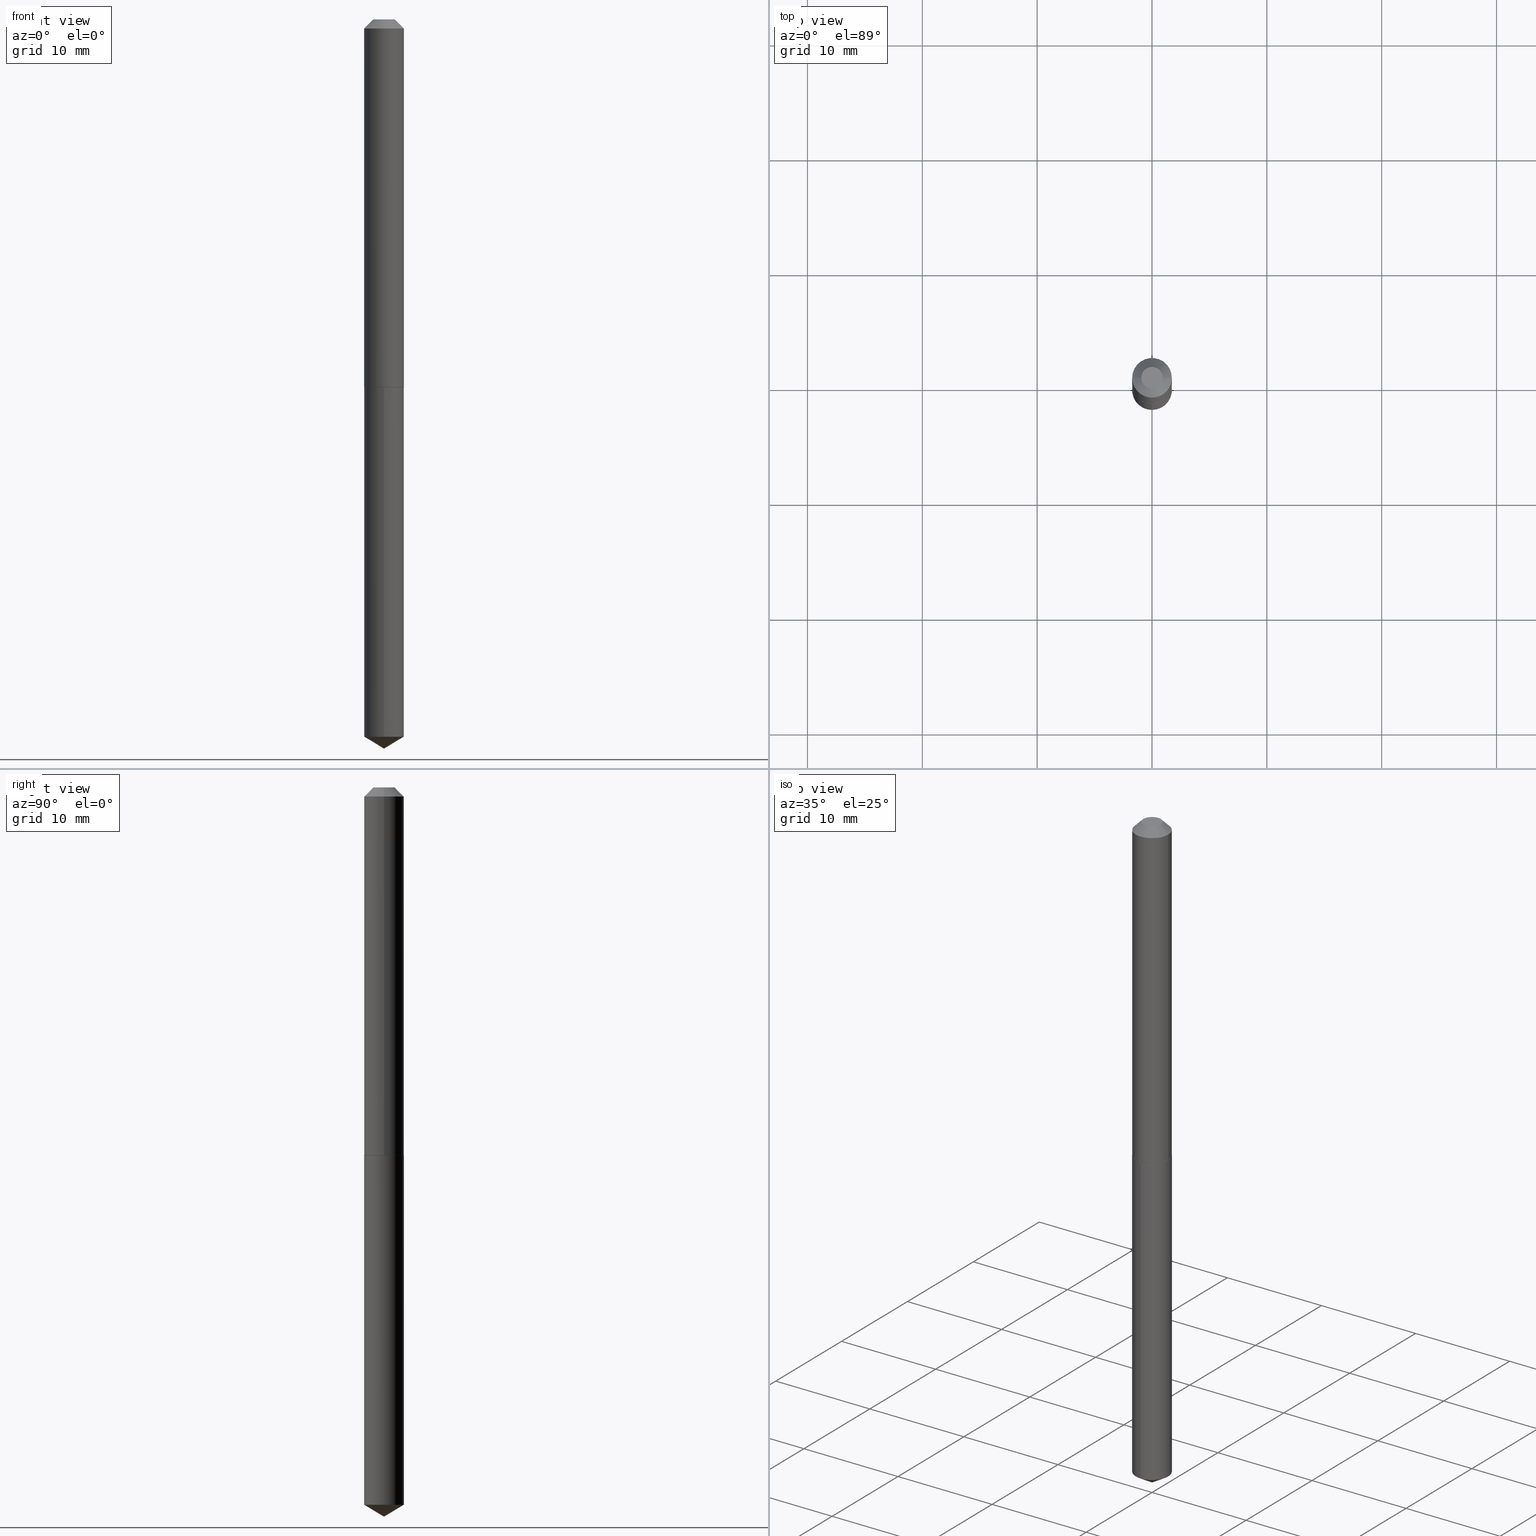
[diagram: canonical four-view strip — front | top / right | iso, engineering-drawing reading convention]
A machine part, canonical four-view strip (front | top / right | iso — engineering-drawing reading convention). The complete STEP part file that produces these views, byte-faithful:
ISO-10303-21;
HEADER;
FILE_DESCRIPTION (( 'STEP AP203' ),
    '1' );
FILE_NAME ('51029.STEP',
    '2024-04-22T18:15:19',
    ( '' ),
    ( '' ),
    'SwSTEP 2.0',
    'SolidWorks 2023',
    '' );
FILE_SCHEMA (( 'CONFIG_CONTROL_DESIGN' ));
ENDSEC;

DATA;
#1 = COORDINATED_UNIVERSAL_TIME_OFFSET ( 5, 0, .BEHIND. ) ;
#2 = ORIENTED_EDGE ( 'NONE', *, *, #338, .F. ) ;
#3 = DIRECTION ( 'NONE',  ( -2.445462976299597791E-29, 3.491489687571053805E-15, 1.000000000000000000 ) ) ;
#4 = APPROVAL ( #241, 'UNSPECIFIED' ) ;
#5 = LINE ( 'NONE', #240, #194 ) ;
#6 = EDGE_LOOP ( 'NONE', ( #37, #182, #9, #10 ) ) ;
#7 = CIRCLE ( 'NONE', #201, 0.03675000000000000488 ) ;
#8 = ORIENTED_EDGE ( 'NONE', *, *, #43, .F. ) ;
#9 = ORIENTED_EDGE ( 'NONE', *, *, #104, .F. ) ;
#10 = ORIENTED_EDGE ( 'NONE', *, *, #121, .F. ) ;
#11 = ORIENTED_EDGE ( 'NONE', *, *, #155, .T. ) ;
#12 = VERTEX_POINT ( 'NONE', #210 ) ;
#13 = CARTESIAN_POINT ( 'NONE',  ( -4.748414620826353629E-16, -0.06800000000000441802, -1.261000000000000121 ) ) ;
#14 = SECURITY_CLASSIFICATION ( '', '', #25 ) ;
#15 = DIRECTION ( 'NONE',  ( -2.445468806185136597E-29, 3.491481338843145583E-15, 1.000000000000000000 ) ) ;
#16 = PERSON ( 'UNSPECIFIED', 'UNSPECIFIED', 'UNSPECIFIED', ('UNSPECIFIED'), ('UNSPECIFIED'), ('UNSPECIFIED') ) ;
#17 = MANIFOLD_SOLID_BREP ( 'Body-Move/Copy2[1]', #244 ) ;
#18 = DIRECTION ( 'NONE',  ( -2.445468806185136597E-29, 3.491481338843145583E-15, 1.000000000000000000 ) ) ;
#19 = DIRECTION ( 'NONE',  ( 1.000000000000000000, -6.982962677686267499E-15, 0.000000000000000000 ) ) ;
#20 = DIRECTION ( 'NONE',  ( -2.445468806185136597E-29, 3.491481338843145583E-15, 1.000000000000000000 ) ) ;
#21 = EDGE_CURVE ( 'NONE', #280, #304, #372, .T. ) ;
#22 = COORDINATED_UNIVERSAL_TIME_OFFSET ( 5, 0, .BEHIND. ) ;
#23 = AXIS2_PLACEMENT_3D ( 'NONE', #286, #323, #226 ) ;
#24 = DIRECTION ( 'NONE',  ( -2.445468806185136597E-29, 3.491481338843145583E-15, 1.000000000000000000 ) ) ;
#25 = SECURITY_CLASSIFICATION_LEVEL ( 'unclassified' ) ;
#26 = DIRECTION ( 'NONE',  ( 1.000000000000000000, -6.982962677686271444E-15, 0.000000000000000000 ) ) ;
#27 = DIRECTION ( 'NONE',  ( -2.445462976299597791E-29, 3.491489687571053805E-15, 1.000000000000000000 ) ) ;
#28 = ADVANCED_FACE ( 'NONE', ( #207 ), #296, .F. ) ;
#29 = CALENDAR_DATE ( 2024, 22, 4 ) ;
#30 = AXIS2_PLACEMENT_3D ( 'NONE', #54, #266, #205 ) ;
#31 = VECTOR ( 'NONE', #143, 39.37007874015748143 ) ;
#32 = CC_DESIGN_APPROVAL ( #4, ( #327 ) ) ;
#33 = CARTESIAN_POINT ( 'NONE',  ( 6.738379978295977236E-48, -9.620620753268178527E-34, -2.755455298081541504E-19 ) ) ;
#34 = ORIENTED_EDGE ( 'NONE', *, *, #65, .F. ) ;
#35 = DIRECTION ( 'NONE',  ( -0.7071067811865451302, 2.468850131082231817E-15, -0.7071067811865499042 ) ) ;
#36 = ORIENTED_EDGE ( 'NONE', *, *, #43, .T. ) ;
#37 = ORIENTED_EDGE ( 'NONE', *, *, #384, .T. ) ;
#38 = ORIENTED_EDGE ( 'NONE', *, *, #341, .F. ) ;
#39 = CONICAL_SURFACE ( 'NONE', #320, 0.06800000000000000488, 0.7853981633974449483 ) ;
#40 = LOCAL_TIME ( 14, 15, 19.00000000000000000, #198 ) ;
#41 = PRODUCT_DEFINITION_SHAPE ( 'NONE', 'NONE',  #228 ) ;
#42 = EDGE_CURVE ( 'NONE', #304, #280, #62, .T. ) ;
#43 = EDGE_CURVE ( 'NONE', #287, #339, #136, .T. ) ;
#44 = AXIS2_PLACEMENT_3D ( 'NONE', #360, #3, #326 ) ;
#45 = CARTESIAN_POINT ( 'NONE',  ( 6.013746789187770522E-29, -8.586056582641587078E-15, -2.459141477906126028 ) ) ;
#46 = FACE_OUTER_BOUND ( 'NONE', #6, .T. ) ;
#47 = DIRECTION ( 'NONE',  ( -6.982962677686265922E-15, -1.000000000000000000, 3.468864327941581987E-15 ) ) ;
#48 = CC_DESIGN_APPROVAL ( #68, ( #14 ) ) ;
#49 = CARTESIAN_POINT ( 'NONE',  ( -4.748414620826059778E-16, -0.06800000000000858136, -2.459141477906126028 ) ) ;
#50 = DIRECTION ( 'NONE',  ( 0.7071067811865451302, -7.319954787623248157E-15, -0.7071067811865499042 ) ) ;
#51 = APPROVAL_DATE_TIME ( #324, #4 ) ;
#52 =( GEOMETRIC_REPRESENTATION_CONTEXT ( 3 ) GLOBAL_UNCERTAINTY_ASSIGNED_CONTEXT ( ( #316 ) ) GLOBAL_UNIT_ASSIGNED_CONTEXT ( ( #90, #300, #145 ) ) REPRESENTATION_CONTEXT ( 'NONE', 'WORKASPACE' ) );
#53 = CC_DESIGN_PERSON_AND_ORGANIZATION_ASSIGNMENT ( #55, #173, ( #214 ) ) ;
#54 = CARTESIAN_POINT ( 'NONE',  ( 3.082513430196365653E-29, -4.401012227611786413E-15, -1.260500000000000398 ) ) ;
#55 = PERSON_AND_ORGANIZATION ( #16, #211 ) ;
#56 = DIRECTION ( 'NONE',  ( -2.445462976299598072E-29, 3.491489687571053805E-15, 1.000000000000000000 ) ) ;
#57 = LINE ( 'NONE', #268, #248 ) ;
#58 = APPLICATION_PROTOCOL_DEFINITION ( 'international standard', 'config_control_design', 1994, #369 ) ;
#59 = LINE ( 'NONE', #89, #156 ) ;
#60 = PERSON_AND_ORGANIZATION ( #16, #211 ) ;
#61 = VERTEX_POINT ( 'NONE', #385 ) ;
#62 = CIRCLE ( 'NONE', #269, 0.06750000000000024036 ) ;
#63 = DIRECTION ( 'NONE',  ( -6.982962677686265922E-15, -1.000000000000000000, 4.017423520094504617E-15 ) ) ;
#64 = ORIENTED_EDGE ( 'NONE', *, *, #291, .F. ) ;
#65 = EDGE_CURVE ( 'NONE', #154, #213, #344, .T. ) ;
#66 = ORIENTED_EDGE ( 'NONE', *, *, #197, .T. ) ;
#67 = EDGE_LOOP ( 'NONE', ( #311, #66, #125, #309 ) ) ;
#68 = APPROVAL ( #80, 'UNSPECIFIED' ) ;
#69 = EDGE_CURVE ( 'NONE', #213, #154, #71, .T. ) ;
#70 = CC_DESIGN_DATE_AND_TIME_ASSIGNMENT ( #325, #170, ( #228 ) ) ;
#71 = CIRCLE ( 'NONE', #105, 0.06800000000000000488 ) ;
#72 = LENGTH_MEASURE_WITH_UNIT ( LENGTH_MEASURE( 0.02539999999999999897 ), #251 );
#73 = EDGE_CURVE ( 'NONE', #310, #122, #7, .T. ) ;
#74 = CARTESIAN_POINT ( 'NONE',  ( -0.06800000000000000488, -1.771891449408448018E-15, -0.03125000000000020817 ) ) ;
#75 = DIRECTION ( 'NONE',  ( -6.982962677686265922E-15, -1.000000000000000000, 4.017423520094504617E-15 ) ) ;
#76 = DIRECTION ( 'NONE',  ( 1.000000000000000000, -6.982962677686266711E-15, 4.876173967176390576E-29 ) ) ;
#77 = CIRCLE ( 'NONE', #253, 0.06800000000000000488 ) ;
#78 = CARTESIAN_POINT ( 'NONE',  ( 7.642090019328602662E-31, -1.091087918388490267E-16, -0.03125000000000020817 ) ) ;
#79 = DIRECTION ( 'NONE',  ( 1.000000000000000000, -6.982962677686258822E-15, 0.000000000000000000 ) ) ;
#80 = APPROVAL_STATUS ( 'not_yet_approved' ) ;
#81 = DIRECTION ( 'NONE',  ( -2.445462976299597791E-29, 3.491489687571053805E-15, 1.000000000000000000 ) ) ;
#82 = LINE ( 'NONE', #87, #31 ) ;
#83 = DIRECTION ( 'NONE',  ( -2.445468806185136597E-29, 3.491481338843145583E-15, 1.000000000000000000 ) ) ;
#84 = DATE_AND_TIME ( #232, #40 ) ;
#85 = ADVANCED_FACE ( 'NONE', ( #275 ), #39, .T. ) ;
#86 = PLANE ( 'NONE',  #119 ) ;
#87 = CARTESIAN_POINT ( 'NONE',  ( 0.06800000000000008815, -4.748414620826667201E-16, 3.315800207541240207E-30 ) ) ;
#88 = DATE_AND_TIME ( #116, #299 ) ;
#89 = CARTESIAN_POINT ( 'NONE',  ( -0.06800000000000000488, 3.657326702438171757E-16, -0.03125000000000020817 ) ) ;
#90 =( CONVERSION_BASED_UNIT ( 'INCH', #72 ) LENGTH_UNIT ( ) NAMED_UNIT ( #186 ) );
#91 = DIRECTION ( 'NONE',  ( 2.438088387897960049E-29, -3.491481338843145188E-15, -1.000000000000000000 ) ) ;
#92 = DIRECTION ( 'NONE',  ( -2.445468806185136597E-29, 3.491481338843145583E-15, 1.000000000000000000 ) ) ;
#93 = EDGE_CURVE ( 'NONE', #287, #373, #5, .T. ) ;
#94 = CARTESIAN_POINT ( 'NONE',  ( 3.083736164599457894E-29, -4.402757968281207128E-15, -1.261000000000000343 ) ) ;
#95 = LOCAL_TIME ( 14, 15, 19.00000000000000000, #295 ) ;
#96 = ORIENTED_EDGE ( 'NONE', *, *, #69, .F. ) ;
#97 = CC_DESIGN_PERSON_AND_ORGANIZATION_ASSIGNMENT ( #292, #144, ( #327 ) ) ;
#98 = ORIENTED_EDGE ( 'NONE', *, *, #237, .F. ) ;
#99 = ORIENTED_EDGE ( 'NONE', *, *, #69, .T. ) ;
#100 = CIRCLE ( 'NONE', #367, 0.06800000000000015754 ) ;
#101 = ORIENTED_EDGE ( 'NONE', *, *, #338, .T. ) ;
#102 = FACE_OUTER_BOUND ( 'NONE', #215, .T. ) ;
#103 = DIRECTION ( 'NONE',  ( -2.445462976299597791E-29, 3.491489687571053805E-15, 1.000000000000000000 ) ) ;
#104 = EDGE_CURVE ( 'NONE', #61, #283, #77, .T. ) ;
#105 = AXIS2_PLACEMENT_3D ( 'NONE', #297, #27, #63 ) ;
#106 = AXIS2_PLACEMENT_3D ( 'NONE', #124, #135, #75 ) ;
#107 = CYLINDRICAL_SURFACE ( 'NONE', #235, 0.06800000000000000488 ) ;
#108 = CC_DESIGN_DATE_AND_TIME_ASSIGNMENT ( #388, #138, ( #14 ) ) ;
#109 = APPROVAL_ROLE ( '' ) ;
#110 = DIRECTION ( 'NONE',  ( -1.000000000000000000, 6.982962677686267499E-15, 0.000000000000000000 ) ) ;
#111 = PERSON_AND_ORGANIZATION ( #16, #211 ) ;
#112 = APPROVAL_DATE_TIME ( #88, #313 ) ;
#113 = FACE_OUTER_BOUND ( 'NONE', #209, .T. ) ;
#114 = CARTESIAN_POINT ( 'NONE',  ( 0.000000000000000000, 0.000000000000000000, 0.000000000000000000 ) ) ;
#115 = DIRECTION ( 'NONE',  ( 2.445468806185136597E-29, -3.491481338843145583E-15, -1.000000000000000000 ) ) ;
#116 = CALENDAR_DATE ( 2024, 22, 4 ) ;
#117 = ORIENTED_EDGE ( 'NONE', *, *, #224, .F. ) ;
#118 = CARTESIAN_POINT ( 'NONE',  ( 3.083736164599457894E-29, -4.402757968281207128E-15, -1.261000000000000343 ) ) ;
#119 = AXIS2_PLACEMENT_3D ( 'NONE', #94, #212, #362 ) ;
#120 = VECTOR ( 'NONE', #289, 39.37007874015748143 ) ;
#121 = EDGE_CURVE ( 'NONE', #12, #61, #82, .T. ) ;
#122 = VERTEX_POINT ( 'NONE', #200 ) ;
#123 = ORIENTED_EDGE ( 'NONE', *, *, #307, .F. ) ;
#124 = CARTESIAN_POINT ( 'NONE',  ( 6.013746789187770522E-29, -8.586056582641587078E-15, -2.459141477906126028 ) ) ;
#125 = ORIENTED_EDGE ( 'NONE', *, *, #384, .F. ) ;
#126 = AXIS2_PLACEMENT_3D ( 'NONE', #356, #81, #233 ) ;
#127 = CONICAL_SURFACE ( 'NONE', #387, 0.06800000000000000488, 0.7853981633974449483 ) ;
#128 = EDGE_LOOP ( 'NONE', ( #337, #184, #242, #101 ) ) ;
#129 = CARTESIAN_POINT ( 'NONE',  ( 3.082513430196365653E-29, -4.401012227611786413E-15, -1.260500000000000398 ) ) ;
#130 = CARTESIAN_POINT ( 'NONE',  ( -0.06800000000000015754, -3.917843167294917857E-15, -1.260500000000000398 ) ) ;
#131 = LINE ( 'NONE', #164, #246 ) ;
#132 = VECTOR ( 'NONE', #50, 39.37007874015748143 ) ;
#133 = PLANE ( 'NONE',  #23 ) ;
#134 = DIRECTION ( 'NONE',  ( 1.000000000000000000, -6.982962677686258822E-15, 0.000000000000000000 ) ) ;
#135 = DIRECTION ( 'NONE',  ( -2.445462976299597791E-29, 3.491489687571053805E-15, 1.000000000000000000 ) ) ;
#136 = LINE ( 'NONE', #141, #377 ) ;
#137 = CONICAL_SURFACE ( 'NONE', #227, 65.52281426576865897, 1.029744258676656088 ) ;
#138 = DATE_TIME_ROLE ( 'classification_date' ) ;
#139 = ADVANCED_FACE ( 'NONE', ( #328 ), #193, .T. ) ;
#140 = DIRECTION ( 'NONE',  ( -5.985567269335949168E-15, -0.8571673007021112234, 0.5150380749100558209 ) ) ;
#141 = CARTESIAN_POINT ( 'NONE',  ( 6.113672272648027410E-29, -8.728703163435849990E-15, -2.500000000000000000 ) ) ;
#142 = CYLINDRICAL_SURFACE ( 'NONE', #44, 0.06800000000000000488 ) ;
#143 = DIRECTION ( 'NONE',  ( -2.445468806185136877E-29, 3.491481338843145188E-15, 1.000000000000000000 ) ) ;
#144 = PERSON_AND_ORGANIZATION_ROLE ( 'design_supplier' ) ;
#145 =( NAMED_UNIT ( * ) SI_UNIT ( $, .STERADIAN. ) SOLID_ANGLE_UNIT ( ) );
#146 = ORIENTED_EDGE ( 'NONE', *, *, #73, .F. ) ;
#147 = CARTESIAN_POINT ( 'NONE',  ( 7.642090019328602662E-31, -1.091087918388490267E-16, -0.03125000000000020817 ) ) ;
#148 = MANIFOLD_SOLID_BREP ( 'Body-Move/Copy2[2]', #332 ) ;
#149 = EDGE_LOOP ( 'NONE', ( #335, #181 ) ) ;
#150 = ORIENTED_EDGE ( 'NONE', *, *, #197, .F. ) ;
#151 = ORIENTED_EDGE ( 'NONE', *, *, #93, .T. ) ;
#152 = AXIS2_PLACEMENT_3D ( 'NONE', #118, #261, #166 ) ;
#153 = LOCAL_TIME ( 14, 15, 19.00000000000000000, #22 ) ;
#154 = VERTEX_POINT ( 'NONE', #330 ) ;
#155 = EDGE_CURVE ( 'NONE', #339, #213, #57, .T. ) ;
#156 = VECTOR ( 'NONE', #35, 39.37007874015748143 ) ;
#157 = VECTOR ( 'NONE', #381, 39.37007874015748143 ) ;
#158 = LINE ( 'NONE', #13, #120 ) ;
#159 = CARTESIAN_POINT ( 'NONE',  ( 6.113657440748994198E-29, -8.728724218927635498E-15, -2.500000000000000000 ) ) ;
#160 = ORIENTED_EDGE ( 'NONE', *, *, #42, .F. ) ;
#161 = ADVANCED_FACE ( 'NONE', ( #113 ), #86, .F. ) ;
#162 = FACE_OUTER_BOUND ( 'NONE', #305, .T. ) ;
#163 = DIRECTION ( 'NONE',  ( 2.445468806185136597E-29, -3.491481338843145583E-15, -1.000000000000000000 ) ) ;
#164 = CARTESIAN_POINT ( 'NONE',  ( -0.06800000000000008815, 4.831690603168687527E-16, -3.344875861373340259E-30 ) ) ;
#165 = CARTESIAN_POINT ( 'NONE',  ( -0.06750000000000024036, -3.920492394469028269E-15, -1.261000000000000343 ) ) ;
#166 = DIRECTION ( 'NONE',  ( 1.000000000000000000, -6.982962677686271444E-15, 0.000000000000000000 ) ) ;
#167 = PERSON_AND_ORGANIZATION_ROLE ( 'creator' ) ;
#168 = EDGE_CURVE ( 'NONE', #122, #283, #59, .T. ) ;
#169 = CIRCLE ( 'NONE', #282, 0.06800000000000000488 ) ;
#170 = DATE_TIME_ROLE ( 'creation_date' ) ;
#171 = FACE_OUTER_BOUND ( 'NONE', #218, .T. ) ;
#172 = APPROVAL_ROLE ( '' ) ;
#173 = PERSON_AND_ORGANIZATION_ROLE ( 'design_owner' ) ;
#174 = CARTESIAN_POINT ( 'NONE',  ( 3.369189989147988618E-48, -4.810310376634089264E-34, -1.377727649040770752E-19 ) ) ;
#175 = DIRECTION ( 'NONE',  ( -0.7071067811865656694, 7.493145998870420424E-15, 0.7071067811865294761 ) ) ;
#176 = AXIS2_PLACEMENT_3D ( 'NONE', #265, #24, #76 ) ;
#177 = APPLICATION_PROTOCOL_DEFINITION ( 'international standard', 'config_control_design', 1994, #318 ) ;
#178 = ORIENTED_EDGE ( 'NONE', *, *, #21, .F. ) ;
#179 = CIRCLE ( 'NONE', #106, 0.06800000000000000488 ) ;
#180 = ORIENTED_EDGE ( 'NONE', *, *, #301, .T. ) ;
#181 = ORIENTED_EDGE ( 'NONE', *, *, #73, .T. ) ;
#182 = ORIENTED_EDGE ( 'NONE', *, *, #307, .T. ) ;
#183 = CIRCLE ( 'NONE', #374, 0.06800000000000015754 ) ;
#184 = ORIENTED_EDGE ( 'NONE', *, *, #185, .F. ) ;
#185 = EDGE_CURVE ( 'NONE', #122, #310, #350, .T. ) ;
#186 = DIMENSIONAL_EXPONENTS ( 1.000000000000000000, 0.000000000000000000, 0.000000000000000000, 0.000000000000000000, 0.000000000000000000, 0.000000000000000000, 0.000000000000000000 ) ;
#187 = FACE_OUTER_BOUND ( 'NONE', #272, .T. ) ;
#188 = AXIS2_PLACEMENT_3D ( 'NONE', #45, #252, #255 ) ;
#189 = FACE_OUTER_BOUND ( 'NONE', #306, .T. ) ;
#190 = EDGE_LOOP ( 'NONE', ( #8, #151, #64 ) ) ;
#191 = CYLINDRICAL_SURFACE ( 'NONE', #333, 0.06800000000000008815 ) ;
#192 = FACE_OUTER_BOUND ( 'NONE', #67, .T. ) ;
#193 = CONICAL_SURFACE ( 'NONE', #30, 0.06800000000000015754, 0.7853981633974739252 ) ;
#194 = VECTOR ( 'NONE', #140, 39.37007874015748143 ) ;
#195 = LOCAL_TIME ( 14, 15, 19.00000000000000000, #331 ) ;
#196 = CARTESIAN_POINT ( 'NONE',  ( 3.082513430196365653E-29, -4.401012227611786413E-15, -1.260500000000000398 ) ) ;
#197 = EDGE_CURVE ( 'NONE', #304, #340, #239, .T. ) ;
#198 = COORDINATED_UNIVERSAL_TIME_OFFSET ( 5, 0, .BEHIND. ) ;
#199 = ADVANCED_FACE ( 'NONE', ( #364 ), #142, .T. ) ;
#200 = CARTESIAN_POINT ( 'NONE',  ( -0.03675000000000000488, 3.111782743243938087E-16, -2.755455298101393027E-19 ) ) ;
#201 = AXIS2_PLACEMENT_3D ( 'NONE', #33, #390, #361 ) ;
#202 = APPROVAL_PERSON_ORGANIZATION ( #267, #313, #109 ) ;
#203 = DIRECTION ( 'NONE',  ( 1.000000000000000000, -6.982962677686265922E-15, 4.876176775795935232E-29 ) ) ;
#204 = APPROVAL_DATE_TIME ( #84, #68 ) ;
#205 = DIRECTION ( 'NONE',  ( 1.000000000000000000, -6.982962677686258822E-15, 0.000000000000000000 ) ) ;
#206 = PERSON_AND_ORGANIZATION ( #16, #211 ) ;
#207 = FACE_OUTER_BOUND ( 'NONE', #149, .T. ) ;
#208 = PERSON_AND_ORGANIZATION_ROLE ( 'creator' ) ;
#209 = EDGE_LOOP ( 'NONE', ( #178, #160 ) ) ;
#210 = CARTESIAN_POINT ( 'NONE',  ( 0.06800000000000015754, -4.875853689694453527E-15, -1.260500000000000398 ) ) ;
#211 = ORGANIZATION ( 'UNSPECIFIED', 'UNSPECIFIED', '' ) ;
#212 = DIRECTION ( 'NONE',  ( -2.438088387897960049E-29, 3.491481338843145188E-15, 1.000000000000000000 ) ) ;
#213 = VERTEX_POINT ( 'NONE', #303 ) ;
#214 = PRODUCT ( '51029', '51029', '', ( #264 ) ) ;
#215 = EDGE_LOOP ( 'NONE', ( #216, #36, #98 ) ) ;
#216 = ORIENTED_EDGE ( 'NONE', *, *, #93, .F. ) ;
#217 = CC_DESIGN_APPROVAL ( #313, ( #228 ) ) ;
#218 = EDGE_LOOP ( 'NONE', ( #146, #180, #376, #279 ) ) ;
#219 = ORIENTED_EDGE ( 'NONE', *, *, #121, .T. ) ;
#220 = ADVANCED_FACE ( 'NONE', ( #171 ), #127, .T. ) ;
#221 = ORIENTED_EDGE ( 'NONE', *, *, #291, .T. ) ;
#222 = DIRECTION ( 'NONE',  ( -2.445462976299597791E-29, 3.491489687571053805E-15, 1.000000000000000000 ) ) ;
#223 = DIRECTION ( 'NONE',  ( 1.000000000000000000, -6.982962677686265922E-15, 4.876176775795935232E-29 ) ) ;
#224 = EDGE_CURVE ( 'NONE', #340, #12, #100, .T. ) ;
#225 = DIRECTION ( 'NONE',  ( -2.445468806185136597E-29, 3.491481338843145583E-15, 1.000000000000000000 ) ) ;
#226 = DIRECTION ( 'NONE',  ( 6.982962677686265922E-15, 1.000000000000000000, -3.491489687571053805E-15 ) ) ;
#227 = AXIS2_PLACEMENT_3D ( 'NONE', #229, #222, #47 ) ;
#228 = PRODUCT_DEFINITION ( 'UNKNOWN', '', #327, #343 ) ;
#229 = CARTESIAN_POINT ( 'NONE',  ( -9.016440514082036552E-28, 1.287315102289384823E-13, 36.87007874015748143 ) ) ;
#230 = ADVANCED_BREP_SHAPE_REPRESENTATION ( '51029', ( #17, #148, #383 ), #52 ) ;
#231 = CARTESIAN_POINT ( 'NONE',  ( 7.642090019328602662E-31, -1.091087918388490267E-16, -0.03125000000000020817 ) ) ;
#232 = CALENDAR_DATE ( 2024, 22, 4 ) ;
#233 = DIRECTION ( 'NONE',  ( -6.982962677686265922E-15, -1.000000000000000000, 4.017423520094504617E-15 ) ) ;
#234 = ADVANCED_FACE ( 'NONE', ( #187 ), #263, .T. ) ;
#235 = AXIS2_PLACEMENT_3D ( 'NONE', #317, #103, #349 ) ;
#236 = PERSON_AND_ORGANIZATION_ROLE ( 'classification_officer' ) ;
#237 = EDGE_CURVE ( 'NONE', #373, #339, #179, .T. ) ;
#238 = DIRECTION ( 'NONE',  ( 1.000000000000000000, 0.000000000000000000, 0.000000000000000000 ) ) ;
#239 = LINE ( 'NONE', #273, #281 ) ;
#240 = CARTESIAN_POINT ( 'NONE',  ( 6.113657440748994198E-29, -8.728724218927635498E-15, -2.500000000000000000 ) ) ;
#241 = APPROVAL_STATUS ( 'not_yet_approved' ) ;
#242 = ORIENTED_EDGE ( 'NONE', *, *, #168, .T. ) ;
#243 = ADVANCED_FACE ( 'NONE', ( #46 ), #191, .T. ) ;
#244 = CLOSED_SHELL ( 'NONE', ( #199, #274, #308, #302, #288 ) ) ;
#245 = ORIENTED_EDGE ( 'NONE', *, *, #65, .T. ) ;
#246 = VECTOR ( 'NONE', #319, 39.37007874015748143 ) ;
#247 = EDGE_LOOP ( 'NONE', ( #150, #366, #370, #117 ) ) ;
#248 = VECTOR ( 'NONE', #56, 39.37007874015748143 ) ;
#249 = CC_DESIGN_SECURITY_CLASSIFICATION ( #14, ( #327 ) ) ;
#250 = CC_DESIGN_PERSON_AND_ORGANIZATION_ASSIGNMENT ( #386, #236, ( #14 ) ) ;
#251 =( LENGTH_UNIT ( ) NAMED_UNIT ( * ) SI_UNIT ( $, .METRE. ) );
#252 = DIRECTION ( 'NONE',  ( -2.445462976299597791E-29, 3.491489687571053805E-15, 1.000000000000000000 ) ) ;
#253 = AXIS2_PLACEMENT_3D ( 'NONE', #231, #92, #357 ) ;
#254 = CONICAL_SURFACE ( 'NONE', #351, 0.06800000000000015754, 0.7853981633974739252 ) ;
#255 = DIRECTION ( 'NONE',  ( -6.982962677686265922E-15, -1.000000000000000000, 4.017423520094504617E-15 ) ) ;
#256 = LINE ( 'NONE', #348, #157 ) ;
#257 = ADVANCED_FACE ( 'NONE', ( #192 ), #254, .T. ) ;
#258 = CARTESIAN_POINT ( 'NONE',  ( 0.03675000000000000488, -4.138729785527085640E-16, -2.755455298058103899E-19 ) ) ;
#259 = DIRECTION ( 'NONE',  ( -1.000000000000000000, 6.982962677686265922E-15, -4.876176775795935793E-29 ) ) ;
#260 = APPROVAL_PERSON_ORGANIZATION ( #60, #4, #172 ) ;
#261 = DIRECTION ( 'NONE',  ( -2.445468806185136597E-29, 3.491481338843145583E-15, 1.000000000000000000 ) ) ;
#262 = CARTESIAN_POINT ( 'NONE',  ( 7.642090019328602662E-31, -1.091087918388490267E-16, -0.03125000000000020817 ) ) ;
#263 = CYLINDRICAL_SURFACE ( 'NONE', #270, 0.06800000000000008815 ) ;
#264 = MECHANICAL_CONTEXT ( 'NONE', #369, 'mechanical' ) ;
#265 = CARTESIAN_POINT ( 'NONE',  ( 6.738379978295977236E-48, -9.620620753268178527E-34, -2.755455298081541504E-19 ) ) ;
#266 = DIRECTION ( 'NONE',  ( -2.445468806185136597E-29, 3.491481338843145583E-15, 1.000000000000000000 ) ) ;
#267 = PERSON_AND_ORGANIZATION ( #16, #211 ) ;
#268 = CARTESIAN_POINT ( 'NONE',  ( 4.831690603168989267E-16, 0.06799999999999560563, -1.261000000000000565 ) ) ;
#269 = AXIS2_PLACEMENT_3D ( 'NONE', #363, #20, #26 ) ;
#270 = AXIS2_PLACEMENT_3D ( 'NONE', #358, #83, #203 ) ;
#271 = APPROVAL_ROLE ( '' ) ;
#272 = EDGE_LOOP ( 'NONE', ( #123, #334, #219, #2 ) ) ;
#273 = CARTESIAN_POINT ( 'NONE',  ( -0.06800000000000015754, -3.917843167294917857E-15, -1.260500000000000398 ) ) ;
#274 = ADVANCED_FACE ( 'NONE', ( #102 ), #137, .T. ) ;
#275 = FACE_OUTER_BOUND ( 'NONE', #128, .T. ) ;
#276 = ORIENTED_EDGE ( 'NONE', *, *, #237, .T. ) ;
#277 = ORIENTED_EDGE ( 'NONE', *, *, #341, .T. ) ;
#278 = ORIENTED_EDGE ( 'NONE', *, *, #155, .F. ) ;
#279 = ORIENTED_EDGE ( 'NONE', *, *, #168, .F. ) ;
#280 = VERTEX_POINT ( 'NONE', #380 ) ;
#281 = VECTOR ( 'NONE', #175, 39.37007874015748143 ) ;
#282 = AXIS2_PLACEMENT_3D ( 'NONE', #78, #18, #19 ) ;
#283 = VERTEX_POINT ( 'NONE', #74 ) ;
#284 = DIRECTION ( 'NONE',  ( -2.445468806185136597E-29, 3.491481338843145583E-15, 1.000000000000000000 ) ) ;
#285 = DIRECTION ( 'NONE',  ( -6.982962677686265922E-15, -1.000000000000000000, 3.468864327941581987E-15 ) ) ;
#286 = CARTESIAN_POINT ( 'NONE',  ( 3.083736164599457894E-29, -4.402757968281207128E-15, -1.261000000000000343 ) ) ;
#287 = VERTEX_POINT ( 'NONE', #159 ) ;
#288 = ADVANCED_FACE ( 'NONE', ( #162 ), #133, .F. ) ;
#289 = DIRECTION ( 'NONE',  ( -2.445462976299598072E-29, 3.491489687571053805E-15, 1.000000000000000000 ) ) ;
#290 = FACE_OUTER_BOUND ( 'NONE', #190, .T. ) ;
#291 = EDGE_CURVE ( 'NONE', #339, #373, #322, .T. ) ;
#292 = PERSON_AND_ORGANIZATION ( #16, #211 ) ;
#293 = AXIS2_PLACEMENT_3D ( 'NONE', #315, #346, #285 ) ;
#294 = PERSON_AND_ORGANIZATION ( #16, #211 ) ;
#295 = COORDINATED_UNIVERSAL_TIME_OFFSET ( 5, 0, .BEHIND. ) ;
#296 = PLANE ( 'NONE',  #312 ) ;
#297 = CARTESIAN_POINT ( 'NONE',  ( 3.083736164599457894E-29, -4.402757968281207128E-15, -1.261000000000000343 ) ) ;
#298 = DIRECTION ( 'NONE',  ( 0.000000000000000000, 0.000000000000000000, 1.000000000000000000 ) ) ;
#299 = LOCAL_TIME ( 14, 15, 19.00000000000000000, #1 ) ;
#300 =( NAMED_UNIT ( * ) PLANE_ANGLE_UNIT ( ) SI_UNIT ( $, .RADIAN. ) );
#301 = EDGE_CURVE ( 'NONE', #310, #61, #352, .T. ) ;
#302 = ADVANCED_FACE ( 'NONE', ( #189 ), #107, .T. ) ;
#303 = CARTESIAN_POINT ( 'NONE',  ( 4.831690603169285090E-16, 0.06799999999999560563, -1.261000000000000565 ) ) ;
#304 = VERTEX_POINT ( 'NONE', #165 ) ;
#305 = EDGE_LOOP ( 'NONE', ( #245, #99 ) ) ;
#306 = EDGE_LOOP ( 'NONE', ( #278, #221, #277, #96 ) ) ;
#307 = EDGE_CURVE ( 'NONE', #340, #283, #131, .T. ) ;
#308 = ADVANCED_FACE ( 'NONE', ( #290 ), #345, .T. ) ;
#309 = ORIENTED_EDGE ( 'NONE', *, *, #389, .F. ) ;
#310 = VERTEX_POINT ( 'NONE', #258 ) ;
#311 = ORIENTED_EDGE ( 'NONE', *, *, #21, .T. ) ;
#312 = AXIS2_PLACEMENT_3D ( 'NONE', #174, #91, #259 ) ;
#313 = APPROVAL ( #355, 'UNSPECIFIED' ) ;
#314 = CARTESIAN_POINT ( 'NONE',  ( 4.831690603169281145E-16, 0.06799999999999140066, -2.459141477906126472 ) ) ;
#315 = CARTESIAN_POINT ( 'NONE',  ( -9.016440514082036552E-28, 1.287315102289384823E-13, 36.87007874015748143 ) ) ;
#316 = UNCERTAINTY_MEASURE_WITH_UNIT (LENGTH_MEASURE( 1.000000000000000082E-05 ), #90, 'distance_accuracy_value', 'NONE');
#317 = CARTESIAN_POINT ( 'NONE',  ( 3.083736164599457894E-29, -4.402757968281207128E-15, -1.261000000000000343 ) ) ;
#318 = APPLICATION_CONTEXT ( 'configuration controlled 3d designs of mechanical parts and assemblies' ) ;
#319 = DIRECTION ( 'NONE',  ( -2.445468806185136877E-29, 3.491481338843145188E-15, 1.000000000000000000 ) ) ;
#320 = AXIS2_PLACEMENT_3D ( 'NONE', #262, #115, #110 ) ;
#321 = DIRECTION ( 'NONE',  ( -1.000000000000000000, 6.982962677686267499E-15, 0.000000000000000000 ) ) ;
#322 = CIRCLE ( 'NONE', #188, 0.06800000000000000488 ) ;
#323 = DIRECTION ( 'NONE',  ( 2.445462976299597231E-29, -3.491489687571053805E-15, -1.000000000000000000 ) ) ;
#324 = DATE_AND_TIME ( #365, #95 ) ;
#325 = DATE_AND_TIME ( #29, #195 ) ;
#326 = DIRECTION ( 'NONE',  ( -6.982962677686265922E-15, -1.000000000000000000, 4.017423520094504617E-15 ) ) ;
#327 = PRODUCT_DEFINITION_FORMATION_WITH_SPECIFIED_SOURCE ( 'ANY', '', #214, .NOT_KNOWN. ) ;
#328 = FACE_OUTER_BOUND ( 'NONE', #247, .T. ) ;
#329 = SHAPE_DEFINITION_REPRESENTATION ( #41, #230 ) ;
#330 = CARTESIAN_POINT ( 'NONE',  ( -4.748414620826353629E-16, -0.06800000000000441802, -1.261000000000000121 ) ) ;
#331 = COORDINATED_UNIVERSAL_TIME_OFFSET ( 5, 0, .BEHIND. ) ;
#332 = CLOSED_SHELL ( 'NONE', ( #220, #243, #257, #161, #139, #234, #85, #28 ) ) ;
#333 = AXIS2_PLACEMENT_3D ( 'NONE', #382, #284, #223 ) ;
#334 = ORIENTED_EDGE ( 'NONE', *, *, #224, .T. ) ;
#335 = ORIENTED_EDGE ( 'NONE', *, *, #185, .T. ) ;
#336 = CC_DESIGN_PERSON_AND_ORGANIZATION_ASSIGNMENT ( #206, #167, ( #327 ) ) ;
#337 = ORIENTED_EDGE ( 'NONE', *, *, #301, .F. ) ;
#338 = EDGE_CURVE ( 'NONE', #283, #61, #169, .T. ) ;
#339 = VERTEX_POINT ( 'NONE', #314 ) ;
#340 = VERTEX_POINT ( 'NONE', #130 ) ;
#341 = EDGE_CURVE ( 'NONE', #373, #154, #158, .T. ) ;
#342 = DIRECTION ( 'NONE',  ( 1.000000000000000000, -6.982962677686258822E-15, 0.000000000000000000 ) ) ;
#343 = DESIGN_CONTEXT ( 'detailed design', #318, 'design' ) ;
#344 = CIRCLE ( 'NONE', #126, 0.06800000000000000488 ) ;
#345 = CONICAL_SURFACE ( 'NONE', #293, 65.52281426576865897, 1.029744258676656088 ) ;
#346 = DIRECTION ( 'NONE',  ( -2.445462976299597791E-29, 3.491489687571053805E-15, 1.000000000000000000 ) ) ;
#347 = CARTESIAN_POINT ( 'NONE',  ( 0.06800000000000000488, -5.756226556873131964E-16, -0.03125000000000020817 ) ) ;
#348 = CARTESIAN_POINT ( 'NONE',  ( 0.06800000000000015754, -4.875853689694453527E-15, -1.260500000000000398 ) ) ;
#349 = DIRECTION ( 'NONE',  ( -6.982962677686265922E-15, -1.000000000000000000, 4.017423520094504617E-15 ) ) ;
#350 = CIRCLE ( 'NONE', #176, 0.03675000000000000488 ) ;
#351 = AXIS2_PLACEMENT_3D ( 'NONE', #196, #15, #79 ) ;
#352 = LINE ( 'NONE', #347, #132 ) ;
#353 = DIRECTION ( 'NONE',  ( 6.090539988449786324E-15, 0.8571673007021148871, 0.5150380749100498257 ) ) ;
#354 = CC_DESIGN_PERSON_AND_ORGANIZATION_ASSIGNMENT ( #111, #208, ( #228 ) ) ;
#355 = APPROVAL_STATUS ( 'not_yet_approved' ) ;
#356 = CARTESIAN_POINT ( 'NONE',  ( 3.083736164599457894E-29, -4.402757968281207128E-15, -1.261000000000000343 ) ) ;
#357 = DIRECTION ( 'NONE',  ( 1.000000000000000000, -6.982962677686267499E-15, 0.000000000000000000 ) ) ;
#358 = CARTESIAN_POINT ( 'NONE',  ( 0.000000000000000000, 0.000000000000000000, 0.000000000000000000 ) ) ;
#359 = CALENDAR_DATE ( 2024, 22, 4 ) ;
#360 = CARTESIAN_POINT ( 'NONE',  ( 3.083736164599457894E-29, -4.402757968281207128E-15, -1.261000000000000343 ) ) ;
#361 = DIRECTION ( 'NONE',  ( 1.000000000000000000, -6.982962677686266711E-15, 4.876173967176390576E-29 ) ) ;
#362 = DIRECTION ( 'NONE',  ( 1.000000000000000000, -6.982962677686265922E-15, 4.876176775795935793E-29 ) ) ;
#363 = CARTESIAN_POINT ( 'NONE',  ( 3.083736164599457894E-29, -4.402757968281207128E-15, -1.261000000000000343 ) ) ;
#364 = FACE_OUTER_BOUND ( 'NONE', #371, .T. ) ;
#365 = CALENDAR_DATE ( 2024, 22, 4 ) ;
#366 = ORIENTED_EDGE ( 'NONE', *, *, #42, .T. ) ;
#367 = AXIS2_PLACEMENT_3D ( 'NONE', #129, #375, #342 ) ;
#368 = PRODUCT_RELATED_PRODUCT_CATEGORY ( 'detail', '', ( #214 ) ) ;
#369 = APPLICATION_CONTEXT ( 'configuration controlled 3d designs of mechanical parts and assemblies' ) ;
#370 = ORIENTED_EDGE ( 'NONE', *, *, #389, .T. ) ;
#371 = EDGE_LOOP ( 'NONE', ( #276, #11, #34, #38 ) ) ;
#372 = CIRCLE ( 'NONE', #152, 0.06750000000000024036 ) ;
#373 = VERTEX_POINT ( 'NONE', #49 ) ;
#374 = AXIS2_PLACEMENT_3D ( 'NONE', #379, #225, #134 ) ;
#375 = DIRECTION ( 'NONE',  ( -2.445468806185136597E-29, 3.491481338843145583E-15, 1.000000000000000000 ) ) ;
#376 = ORIENTED_EDGE ( 'NONE', *, *, #104, .T. ) ;
#377 = VECTOR ( 'NONE', #353, 39.37007874015748854 ) ;
#378 = APPROVAL_PERSON_ORGANIZATION ( #294, #68, #271 ) ;
#379 = CARTESIAN_POINT ( 'NONE',  ( 3.082513430196365653E-29, -4.401012227611786413E-15, -1.260500000000000398 ) ) ;
#380 = CARTESIAN_POINT ( 'NONE',  ( 0.06750000000000024036, -4.874107949025032024E-15, -1.261000000000000343 ) ) ;
#381 = DIRECTION ( 'NONE',  ( 0.7071067811865656694, -2.468850131082446387E-15, 0.7071067811865294761 ) ) ;
#382 = CARTESIAN_POINT ( 'NONE',  ( 0.000000000000000000, 0.000000000000000000, 0.000000000000000000 ) ) ;
#383 = AXIS2_PLACEMENT_3D ( 'NONE', #114, #298, #238 ) ;
#384 = EDGE_CURVE ( 'NONE', #12, #340, #183, .T. ) ;
#385 = CARTESIAN_POINT ( 'NONE',  ( 0.06800000000000000488, -5.839502539215152291E-16, -0.03125000000000020817 ) ) ;
#386 = PERSON_AND_ORGANIZATION ( #16, #211 ) ;
#387 = AXIS2_PLACEMENT_3D ( 'NONE', #147, #163, #321 ) ;
#388 = DATE_AND_TIME ( #359, #153 ) ;
#389 = EDGE_CURVE ( 'NONE', #280, #12, #256, .T. ) ;
#390 = DIRECTION ( 'NONE',  ( -2.445468806185136597E-29, 3.491481338843145583E-15, 1.000000000000000000 ) ) ;
ENDSEC;
END-ISO-10303-21;
